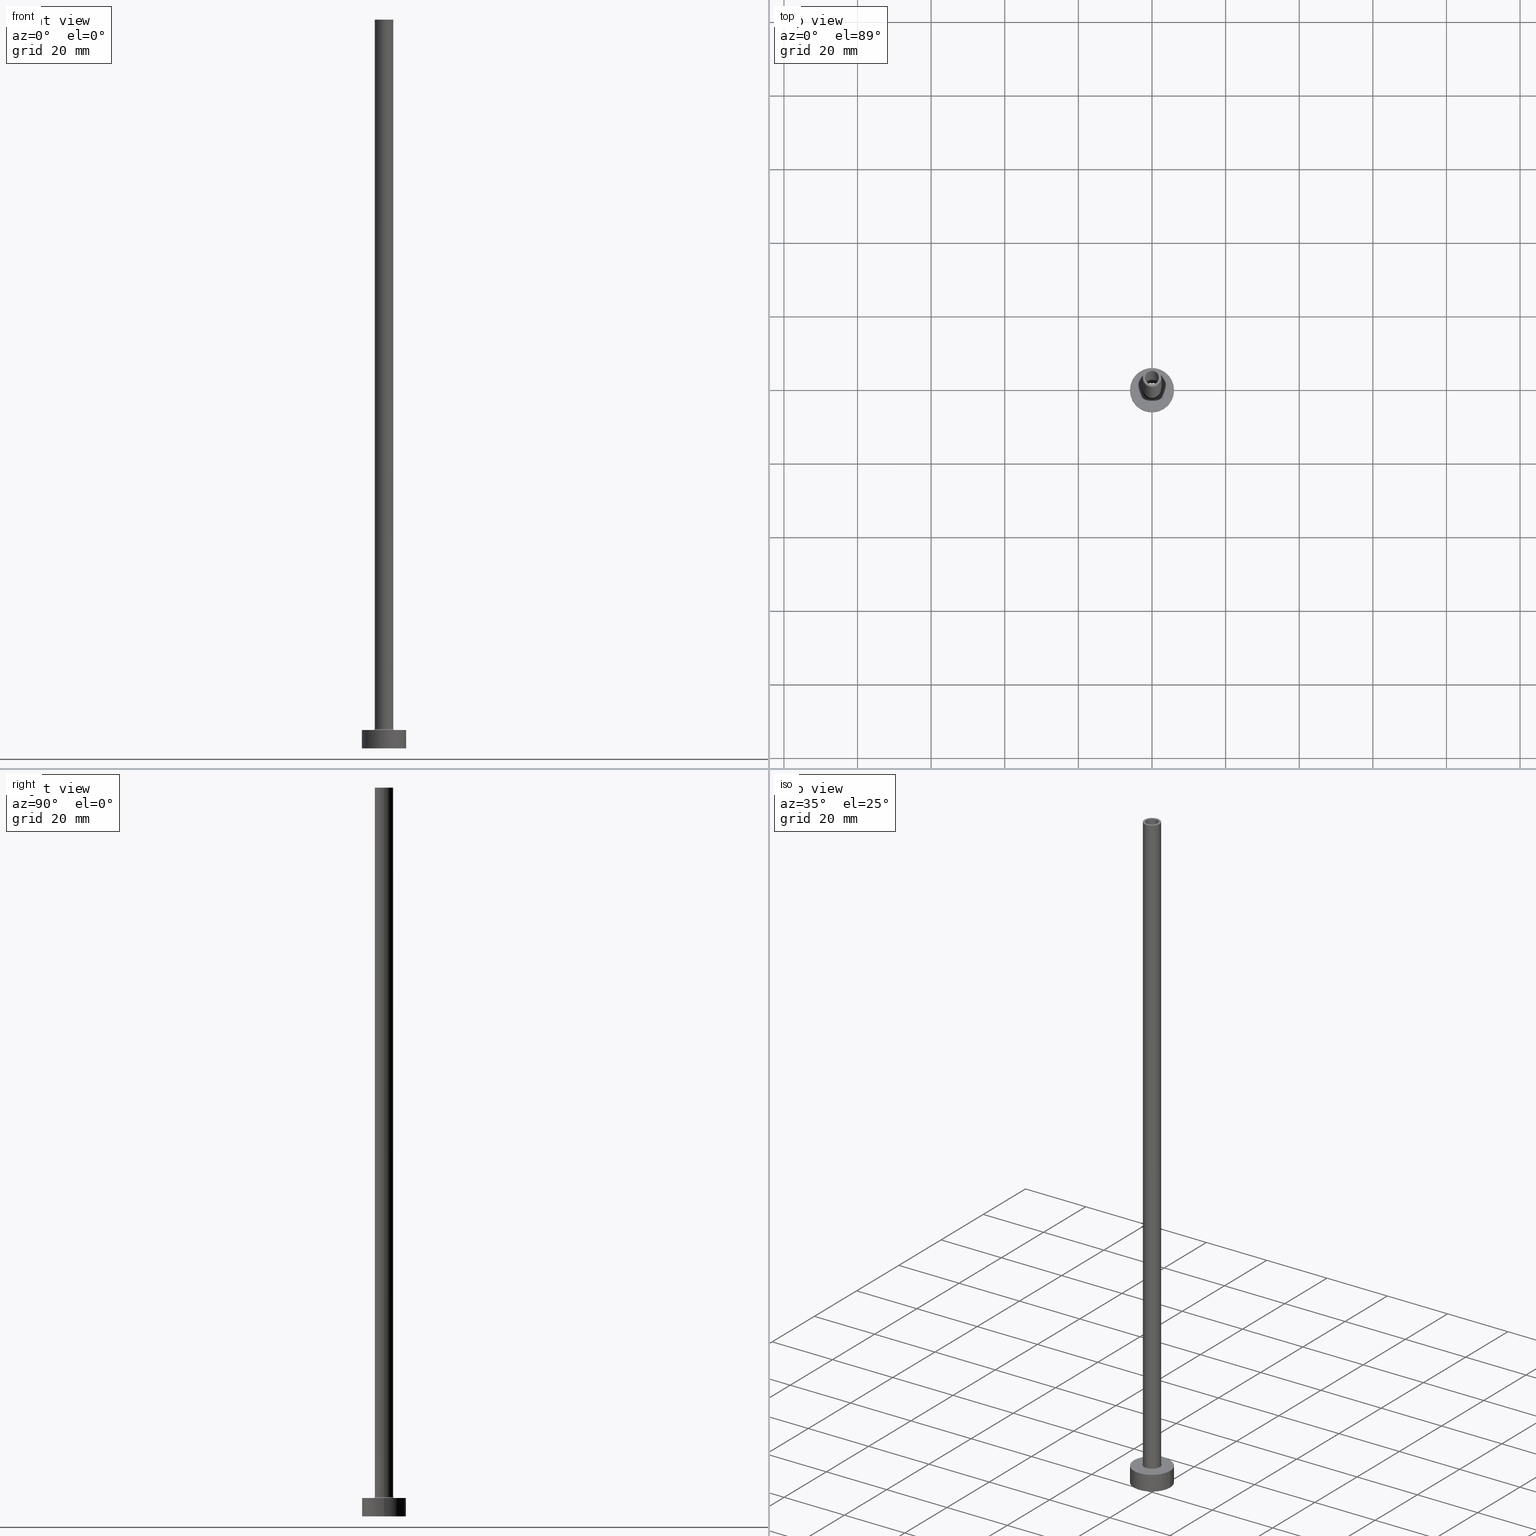
[diagram: canonical four-view strip — front | top / right | iso, engineering-drawing reading convention]
A machine part, canonical four-view strip (front | top / right | iso — engineering-drawing reading convention). The complete STEP part file that produces these views, byte-faithful:
ISO-10303-21;
HEADER;
FILE_DESCRIPTION (( 'STEP AP203' ),
    '1' );
FILE_NAME ('603a.STEP',
    '2024-02-09T09:06:29',
    ( '' ),
    ( '' ),
    'SwSTEP 2.0',
    'SolidWorks 2019',
    '' );
FILE_SCHEMA (( 'CONFIG_CONTROL_DESIGN' ));
ENDSEC;

DATA;
#1 = DATE_AND_TIME ( #318, #27 ) ;
#2 = FACE_OUTER_BOUND ( 'NONE', #372, .T. ) ;
#3 = DIRECTION ( 'NONE',  ( 0.000000000000000000, 0.000000000000000000, 1.000000000000000000 ) ) ;
#4 = EDGE_CURVE ( 'NONE', #62, #264, #193, .T. ) ;
#5 = APPROVAL_DATE_TIME ( #1, #447 ) ;
#6 = CC_DESIGN_PERSON_AND_ORGANIZATION_ASSIGNMENT ( #210, #424, ( #16 ) ) ;
#7 = ORIENTED_EDGE ( 'NONE', *, *, #369, .T. ) ;
#8 = COORDINATED_UNIVERSAL_TIME_OFFSET ( 1, 0, .AHEAD. ) ;
#9 = ORIENTED_EDGE ( 'NONE', *, *, #254, .T. ) ;
#10 = EDGE_CURVE ( 'NONE', #114, #434, #98, .T. ) ;
#11 = DIRECTION ( 'NONE',  ( 0.000000000000000000, 0.000000000000000000, 1.000000000000000000 ) ) ;
#12 = AXIS2_PLACEMENT_3D ( 'NONE', #66, #100, #141 ) ;
#13 = CARTESIAN_POINT ( 'NONE',  ( 0.000000000000000000, 0.000000000000000000, 153.0000000000000284 ) ) ;
#14 = VERTEX_POINT ( 'NONE', #238 ) ;
#15 = CIRCLE ( 'NONE', #135, 2.000000000000000000 ) ;
#16 = PRODUCT_DEFINITION_FORMATION_WITH_SPECIFIED_SOURCE ( 'LIBOVOLN�', '', #245, .NOT_KNOWN. ) ;
#17 = DIRECTION ( 'NONE',  ( 1.000000000000000000, 0.000000000000000000, 0.000000000000000000 ) ) ;
#18 = ORIENTED_EDGE ( 'NONE', *, *, #369, .F. ) ;
#19 = FACE_OUTER_BOUND ( 'NONE', #257, .T. ) ;
#20 = ORIENTED_EDGE ( 'NONE', *, *, #381, .T. ) ;
#21 = APPROVAL_ROLE ( '' ) ;
#22 = TOROIDAL_SURFACE ( 'NONE', #12, 2.799999999999999822, 0.2999999999999999889 ) ;
#23 = CARTESIAN_POINT ( 'NONE',  ( 0.000000000000000000, 0.000000000000000000, 153.0000000000000284 ) ) ;
#24 = ORIENTED_EDGE ( 'NONE', *, *, #198, .F. ) ;
#25 = APPROVAL_DATE_TIME ( #276, #54 ) ;
#26 = AXIS2_PLACEMENT_3D ( 'NONE', #256, #432, #358 ) ;
#27 = LOCAL_TIME ( 10, 6, 29.00000000000000000, #292 ) ;
#28 = ORIENTED_EDGE ( 'NONE', *, *, #40, .F. ) ;
#29 = EDGE_CURVE ( 'NONE', #446, #220, #286, .T. ) ;
#30 = VECTOR ( 'NONE', #454, 1000.000000000000000 ) ;
#31 = FACE_OUTER_BOUND ( 'NONE', #178, .T. ) ;
#32 = CARTESIAN_POINT ( 'NONE',  ( -1.850000000000000089, 0.000000000000000000, 198.0000000000000000 ) ) ;
#33 = CARTESIAN_POINT ( 'NONE',  ( -2.500000000000000000, 0.000000000000000000, 198.0000000000000000 ) ) ;
#34 = DIRECTION ( 'NONE',  ( 0.000000000000000000, 0.000000000000000000, 1.000000000000000000 ) ) ;
#35 = ADVANCED_FACE ( 'NONE', ( #384, #310 ), #393, .F. ) ;
#36 = CARTESIAN_POINT ( 'NONE',  ( 0.000000000000000000, 0.000000000000000000, 153.0000000000000284 ) ) ;
#37 = FACE_BOUND ( 'NONE', #337, .T. ) ;
#38 = CIRCLE ( 'NONE', #351, 1.850000000000000089 ) ;
#39 = CC_DESIGN_SECURITY_CLASSIFICATION ( #282, ( #16 ) ) ;
#40 = EDGE_CURVE ( 'NONE', #195, #114, #108, .T. ) ;
#41 = DATE_AND_TIME ( #77, #275 ) ;
#42 = CARTESIAN_POINT ( 'NONE',  ( 0.000000000000000000, 0.000000000000000000, 5.000000000000000000 ) ) ;
#43 = ORIENTED_EDGE ( 'NONE', *, *, #328, .T. ) ;
#44 = PERSON_AND_ORGANIZATION ( #134, #175 ) ;
#45 = APPLICATION_PROTOCOL_DEFINITION ( 'international standard', 'config_control_design', 1994, #80 ) ;
#46 = CARTESIAN_POINT ( 'NONE',  ( 1.850000000000000089, 2.265596578422602607E-16, 198.0000000000000000 ) ) ;
#47 = AXIS2_PLACEMENT_3D ( 'NONE', #427, #285, #262 ) ;
#48 = ORIENTED_EDGE ( 'NONE', *, *, #450, .T. ) ;
#49 = CARTESIAN_POINT ( 'NONE',  ( 2.000000000000000000, 2.449293598294706414E-16, 153.0000000000000284 ) ) ;
#50 = ADVANCED_FACE ( 'NONE', ( #60 ), #22, .F. ) ;
#51 = DIRECTION ( 'NONE',  ( 0.000000000000000000, 0.000000000000000000, 1.000000000000000000 ) ) ;
#52 = ORIENTED_EDGE ( 'NONE', *, *, #216, .T. ) ;
#53 = FACE_OUTER_BOUND ( 'NONE', #248, .T. ) ;
#54 = APPROVAL ( #125, 'NEUR�EN�' ) ;
#55 = EDGE_LOOP ( 'NONE', ( #214, #7, #251, #130 ) ) ;
#56 = CARTESIAN_POINT ( 'NONE',  ( 0.000000000000000000, 0.000000000000000000, 198.0000000000000000 ) ) ;
#57 = ORIENTED_EDGE ( 'NONE', *, *, #365, .T. ) ;
#58 = VECTOR ( 'NONE', #133, 1000.000000000000000 ) ;
#59 = DIRECTION ( 'NONE',  ( -1.000000000000000000, 0.000000000000000000, 0.000000000000000000 ) ) ;
#60 = FACE_OUTER_BOUND ( 'NONE', #55, .T. ) ;
#61 = CARTESIAN_POINT ( 'NONE',  ( 0.000000000000000000, 0.000000000000000000, 5.000000000000000000 ) ) ;
#62 = VERTEX_POINT ( 'NONE', #234 ) ;
#63 = APPROVAL_PERSON_ORGANIZATION ( #44, #447, #74 ) ;
#64 = FACE_OUTER_BOUND ( 'NONE', #120, .T. ) ;
#65 = ADVANCED_FACE ( 'NONE', ( #104, #277 ), #278, .T. ) ;
#66 = CARTESIAN_POINT ( 'NONE',  ( 0.000000000000000000, 0.000000000000000000, 5.299999999999998934 ) ) ;
#67 =( LENGTH_UNIT ( ) NAMED_UNIT ( * ) SI_UNIT ( .MILLI., .METRE. ) );
#68 = CARTESIAN_POINT ( 'NONE',  ( 1.850000000000000089, 2.265596578422602607E-16, 153.0000000000000284 ) ) ;
#69 = PERSON_AND_ORGANIZATION ( #134, #175 ) ;
#70 = ADVANCED_FACE ( 'NONE', ( #235, #106 ), #102, .F. ) ;
#71 = DIRECTION ( 'NONE',  ( 0.000000000000000000, 0.000000000000000000, 1.000000000000000000 ) ) ;
#72 = VECTOR ( 'NONE', #336, 1000.000000000000000 ) ;
#73 = CC_DESIGN_PERSON_AND_ORGANIZATION_ASSIGNMENT ( #69, #250, ( #249 ) ) ;
#74 = APPROVAL_ROLE ( '' ) ;
#75 = CARTESIAN_POINT ( 'NONE',  ( 0.000000000000000000, 0.000000000000000000, 5.000000000000000000 ) ) ;
#76 = VERTEX_POINT ( 'NONE', #68 ) ;
#77 = CALENDAR_DATE ( 2024, 9, 2 ) ;
#78 = VERTEX_POINT ( 'NONE', #354 ) ;
#79 = CARTESIAN_POINT ( 'NONE',  ( 0.000000000000000000, 0.000000000000000000, 153.0000000000000284 ) ) ;
#80 = APPLICATION_CONTEXT ( 'configuration controlled 3d designs of mechanical parts and assemblies' ) ;
#81 = CIRCLE ( 'NONE', #121, 2.500000000000000000 ) ;
#82 = CARTESIAN_POINT ( 'NONE',  ( 0.000000000000000000, 0.000000000000000000, 5.299999999999998934 ) ) ;
#83 = UNCERTAINTY_MEASURE_WITH_UNIT (LENGTH_MEASURE( 1.000000000000000082E-05 ), #67, 'distance_accuracy_value', 'NONE');
#84 = CARTESIAN_POINT ( 'NONE',  ( 0.000000000000000000, 0.000000000000000000, 5.299999999999998934 ) ) ;
#85 = EDGE_LOOP ( 'NONE', ( #449, #162, #48, #261 ) ) ;
#86 = CIRCLE ( 'NONE', #348, 6.000000000000000888 ) ;
#87 = DATE_AND_TIME ( #205, #157 ) ;
#88 = APPROVAL ( #407, 'NEUR�EN�' ) ;
#89 = DIRECTION ( 'NONE',  ( -0.000000000000000000, -0.000000000000000000, -1.000000000000000000 ) ) ;
#90 = ORIENTED_EDGE ( 'NONE', *, *, #168, .T. ) ;
#91 = AXIS2_PLACEMENT_3D ( 'NONE', #117, #403, #440 ) ;
#92 = DIRECTION ( 'NONE',  ( 0.000000000000000000, 0.000000000000000000, -1.000000000000000000 ) ) ;
#93 = ORIENTED_EDGE ( 'NONE', *, *, #154, .T. ) ;
#94 = CARTESIAN_POINT ( 'NONE',  ( -2.500000000000000000, 0.000000000000000000, 5.299999999999998934 ) ) ;
#95 = EDGE_CURVE ( 'NONE', #76, #434, #243, .T. ) ;
#96 = ORIENTED_EDGE ( 'NONE', *, *, #307, .F. ) ;
#97 = CARTESIAN_POINT ( 'NONE',  ( 0.000000000000000000, 0.000000000000000000, 0.000000000000000000 ) ) ;
#98 = LINE ( 'NONE', #32, #30 ) ;
#99 = DIRECTION ( 'NONE',  ( 1.000000000000000000, 0.000000000000000000, 0.000000000000000000 ) ) ;
#100 = DIRECTION ( 'NONE',  ( 0.000000000000000000, 0.000000000000000000, 1.000000000000000000 ) ) ;
#101 = DIRECTION ( 'NONE',  ( 1.000000000000000000, 0.000000000000000000, 0.000000000000000000 ) ) ;
#102 = PLANE ( 'NONE',  #339 ) ;
#103 = ADVANCED_FACE ( 'NONE', ( #37, #320 ), #116, .T. ) ;
#104 = FACE_BOUND ( 'NONE', #327, .T. ) ;
#105 = VECTOR ( 'NONE', #309, 1000.000000000000000 ) ;
#106 = FACE_OUTER_BOUND ( 'NONE', #323, .T. ) ;
#107 = PERSON_AND_ORGANIZATION ( #134, #175 ) ;
#108 = CIRCLE ( 'NONE', #302, 1.850000000000000089 ) ;
#109 = ORIENTED_EDGE ( 'NONE', *, *, #10, .F. ) ;
#110 = PRODUCT_DEFINITION_SHAPE ( 'NONE', 'NONE',  #249 ) ;
#111 = DIRECTION ( 'NONE',  ( 1.000000000000000000, 0.000000000000000000, 0.000000000000000000 ) ) ;
#112 = CIRCLE ( 'NONE', #165, 2.000000000000000000 ) ;
#113 = PERSON_AND_ORGANIZATION ( #134, #175 ) ;
#114 = VERTEX_POINT ( 'NONE', #364 ) ;
#115 = EDGE_CURVE ( 'NONE', #220, #446, #86, .T. ) ;
#116 = PLANE ( 'NONE',  #255 ) ;
#117 = CARTESIAN_POINT ( 'NONE',  ( 0.000000000000000000, 0.000000000000000000, 158.6568542494923975 ) ) ;
#118 = MANIFOLD_SOLID_BREP ( 'Odebrat vysunut�m4', #236 ) ;
#119 = AXIS2_PLACEMENT_3D ( 'NONE', #152, #71, #111 ) ;
#120 = EDGE_LOOP ( 'NONE', ( #90, #20, #308, #426 ) ) ;
#121 = AXIS2_PLACEMENT_3D ( 'NONE', #84, #219, #185 ) ;
#122 = CARTESIAN_POINT ( 'NONE',  ( -6.000000000000000888, 0.000000000000000000, 0.000000000000000000 ) ) ;
#123 = ADVANCED_FACE ( 'NONE', ( #2 ), #435, .F. ) ;
#124 = ORIENTED_EDGE ( 'NONE', *, *, #355, .F. ) ;
#125 = APPROVAL_STATUS ( 'not_yet_approved' ) ;
#126 = FACE_OUTER_BOUND ( 'NONE', #166, .T. ) ;
#127 = ORIENTED_EDGE ( 'NONE', *, *, #40, .T. ) ;
#128 = LINE ( 'NONE', #265, #207 ) ;
#129 = ORIENTED_EDGE ( 'NONE', *, *, #29, .T. ) ;
#130 = ORIENTED_EDGE ( 'NONE', *, *, #4, .F. ) ;
#131 = CC_DESIGN_PERSON_AND_ORGANIZATION_ASSIGNMENT ( #107, #360, ( #16 ) ) ;
#132 = EDGE_LOOP ( 'NONE', ( #124, #9, #43, #439 ) ) ;
#133 = DIRECTION ( 'NONE',  ( 0.000000000000000000, 0.000000000000000000, -1.000000000000000000 ) ) ;
#134 = PERSON ( 'NEUR�EN�', 'NEUR�EN�', 'NEUR�EN�', ('NEUR�EN�'), ('NEUR�EN�'), ('NEUR�EN�') ) ;
#135 = AXIS2_PLACEMENT_3D ( 'NONE', #79, #208, #211 ) ;
#136 = CIRCLE ( 'NONE', #317, 2.500000000000000000 ) ;
#137 =( NAMED_UNIT ( * ) SI_UNIT ( $, .STERADIAN. ) SOLID_ANGLE_UNIT ( ) );
#138 = DIRECTION ( 'NONE',  ( 1.000000000000000000, 0.000000000000000000, 0.000000000000000000 ) ) ;
#139 = EDGE_CURVE ( 'NONE', #366, #78, #422, .T. ) ;
#140 = DIRECTION ( 'NONE',  ( -0.000000000000000000, -0.000000000000000000, -1.000000000000000000 ) ) ;
#141 = DIRECTION ( 'NONE',  ( 1.000000000000000000, 0.000000000000000000, 0.000000000000000000 ) ) ;
#142 = CARTESIAN_POINT ( 'NONE',  ( -1.850000000000000089, 0.000000000000000000, 153.0000000000000284 ) ) ;
#143 = DIRECTION ( 'NONE',  ( 1.000000000000000000, 0.000000000000000000, -0.000000000000000000 ) ) ;
#144 = ADVANCED_FACE ( 'NONE', ( #395 ), #177, .T. ) ;
#145 = APPROVAL_PERSON_ORGANIZATION ( #363, #54, #21 ) ;
#146 = ORIENTED_EDGE ( 'NONE', *, *, #332, .T. ) ;
#147 = CARTESIAN_POINT ( 'NONE',  ( -2.799999999999999822, 3.429011037612589276E-16, 4.999999999999999112 ) ) ;
#148 = ORIENTED_EDGE ( 'NONE', *, *, #139, .T. ) ;
#149 = APPROVAL_PERSON_ORGANIZATION ( #113, #88, #244 ) ;
#150 = ORIENTED_EDGE ( 'NONE', *, *, #198, .T. ) ;
#151 = PERSON_AND_ORGANIZATION_ROLE ( 'classification_officer' ) ;
#152 = CARTESIAN_POINT ( 'NONE',  ( 0.000000000000000000, 0.000000000000000000, 198.0000000000000000 ) ) ;
#153 = DIRECTION ( 'NONE',  ( 0.000000000000000000, 0.000000000000000000, -1.000000000000000000 ) ) ;
#154 = EDGE_CURVE ( 'NONE', #114, #195, #258, .T. ) ;
#155 = DIRECTION ( 'NONE',  ( -0.000000000000000000, -0.000000000000000000, -1.000000000000000000 ) ) ;
#156 = VERTEX_POINT ( 'NONE', #397 ) ;
#157 = LOCAL_TIME ( 10, 6, 29.00000000000000000, #176 ) ;
#158 = CC_DESIGN_APPROVAL ( #54, ( #282 ) ) ;
#159 = CARTESIAN_POINT ( 'NONE',  ( -2.000000000000000000, 0.000000000000000000, 153.0000000000000284 ) ) ;
#160 = CALENDAR_DATE ( 2024, 9, 2 ) ;
#161 = DIRECTION ( 'NONE',  ( 0.000000000000000000, 0.000000000000000000, 1.000000000000000000 ) ) ;
#162 = ORIENTED_EDGE ( 'NONE', *, *, #29, .F. ) ;
#163 = DIRECTION ( 'NONE',  ( 0.000000000000000000, 0.000000000000000000, 1.000000000000000000 ) ) ;
#164 = ORIENTED_EDGE ( 'NONE', *, *, #115, .F. ) ;
#165 = AXIS2_PLACEMENT_3D ( 'NONE', #97, #140, #390 ) ;
#166 = EDGE_LOOP ( 'NONE', ( #191, #146, #57, #148 ) ) ;
#167 = CARTESIAN_POINT ( 'NONE',  ( -6.000000000000000888, 0.000000000000000000, 5.000000000000000000 ) ) ;
#168 = EDGE_CURVE ( 'NONE', #345, #227, #15, .T. ) ;
#169 = VECTOR ( 'NONE', #421, 1000.000000000000000 ) ;
#170 = CARTESIAN_POINT ( 'NONE',  ( 0.000000000000000000, 0.000000000000000000, 0.000000000000000000 ) ) ;
#171 = DIRECTION ( 'NONE',  ( 1.000000000000000000, 0.000000000000000000, 0.000000000000000000 ) ) ;
#172 = APPLICATION_CONTEXT ( 'configuration controlled 3d designs of mechanical parts and assemblies' ) ;
#173 = DIRECTION ( 'NONE',  ( 0.000000000000000000, 0.000000000000000000, 1.000000000000000000 ) ) ;
#174 = CALENDAR_DATE ( 2024, 9, 2 ) ;
#175 = ORGANIZATION ( 'NEUR�EN�', 'NEUR�EN�', '' ) ;
#176 = COORDINATED_UNIVERSAL_TIME_OFFSET ( 1, 0, .AHEAD. ) ;
#177 = CYLINDRICAL_SURFACE ( 'NONE', #316, 6.000000000000000888 ) ;
#178 = EDGE_LOOP ( 'NONE', ( #93, #52, #203, #109 ) ) ;
#179 = ORIENTED_EDGE ( 'NONE', *, *, #168, .F. ) ;
#180 = PERSON_AND_ORGANIZATION ( #134, #175 ) ;
#181 = DIRECTION ( 'NONE',  ( 1.000000000000000000, 0.000000000000000000, 0.000000000000000000 ) ) ;
#182 = AXIS2_PLACEMENT_3D ( 'NONE', #304, #343, #233 ) ;
#183 = CARTESIAN_POINT ( 'NONE',  ( 0.000000000000000000, 0.000000000000000000, 5.000000000000000000 ) ) ;
#184 = ADVANCED_BREP_SHAPE_REPRESENTATION ( '603a', ( #118, #47 ), #373 ) ;
#185 = DIRECTION ( 'NONE',  ( 1.000000000000000000, 0.000000000000000000, 0.000000000000000000 ) ) ;
#186 = ORIENTED_EDGE ( 'NONE', *, *, #139, .F. ) ;
#187 = AXIS2_PLACEMENT_3D ( 'NONE', #230, #458, #456 ) ;
#188 = CIRCLE ( 'NONE', #324, 2.799999999999999822 ) ;
#189 = CIRCLE ( 'NONE', #222, 2.799999999999999822 ) ;
#190 = DIRECTION ( 'NONE',  ( 0.000000000000000000, 0.000000000000000000, -1.000000000000000000 ) ) ;
#191 = ORIENTED_EDGE ( 'NONE', *, *, #381, .F. ) ;
#192 = ORIENTED_EDGE ( 'NONE', *, *, #450, .F. ) ;
#193 = CIRCLE ( 'NONE', #451, 0.2999999999999999334 ) ;
#194 = DIRECTION ( 'NONE',  ( -1.000000000000000000, 0.000000000000000000, 0.000000000000000000 ) ) ;
#195 = VERTEX_POINT ( 'NONE', #46 ) ;
#196 = CIRCLE ( 'NONE', #259, 6.000000000000000888 ) ;
#197 = DIRECTION ( 'NONE',  ( 1.000000000000000000, 0.000000000000000000, 0.000000000000000000 ) ) ;
#198 = EDGE_CURVE ( 'NONE', #212, #264, #188, .T. ) ;
#199 = DIRECTION ( 'NONE',  ( -0.000000000000000000, -0.000000000000000000, -1.000000000000000000 ) ) ;
#200 = CARTESIAN_POINT ( 'NONE',  ( 0.000000000000000000, 0.000000000000000000, 198.0000000000000000 ) ) ;
#201 = VECTOR ( 'NONE', #190, 1000.000000000000000 ) ;
#202 = CYLINDRICAL_SURFACE ( 'NONE', #232, 2.000000000000000000 ) ;
#203 = ORIENTED_EDGE ( 'NONE', *, *, #341, .F. ) ;
#204 =( NAMED_UNIT ( * ) PLANE_ANGLE_UNIT ( ) SI_UNIT ( $, .RADIAN. ) );
#205 = CALENDAR_DATE ( 2024, 9, 2 ) ;
#206 = DIRECTION ( 'NONE',  ( -0.000000000000000000, -0.000000000000000000, -1.000000000000000000 ) ) ;
#207 = VECTOR ( 'NONE', #92, 1000.000000000000000 ) ;
#208 = DIRECTION ( 'NONE',  ( 0.000000000000000000, 0.000000000000000000, 1.000000000000000000 ) ) ;
#209 = ORIENTED_EDGE ( 'NONE', *, *, #431, .F. ) ;
#210 = PERSON_AND_ORGANIZATION ( #134, #175 ) ;
#211 = DIRECTION ( 'NONE',  ( 1.000000000000000000, 0.000000000000000000, 0.000000000000000000 ) ) ;
#212 = VERTEX_POINT ( 'NONE', #147 ) ;
#213 = DATE_TIME_ROLE ( 'classification_date' ) ;
#214 = ORIENTED_EDGE ( 'NONE', *, *, #313, .F. ) ;
#215 = AXIS2_PLACEMENT_3D ( 'NONE', #375, #161, #301 ) ;
#216 = EDGE_CURVE ( 'NONE', #195, #76, #284, .T. ) ;
#217 = CYLINDRICAL_SURFACE ( 'NONE', #333, 1.850000000000000089 ) ;
#218 = ORIENTED_EDGE ( 'NONE', *, *, #154, .F. ) ;
#219 = DIRECTION ( 'NONE',  ( 0.000000000000000000, 0.000000000000000000, 1.000000000000000000 ) ) ;
#220 = VERTEX_POINT ( 'NONE', #228 ) ;
#221 = CARTESIAN_POINT ( 'NONE',  ( 6.000000000000000888, 7.347880794884120722E-16, 0.000000000000000000 ) ) ;
#222 = AXIS2_PLACEMENT_3D ( 'NONE', #382, #387, #99 ) ;
#223 = ORIENTED_EDGE ( 'NONE', *, *, #341, .T. ) ;
#224 = SHAPE_DEFINITION_REPRESENTATION ( #110, #184 ) ;
#225 = ADVANCED_FACE ( 'NONE', ( #53 ), #217, .F. ) ;
#226 = CARTESIAN_POINT ( 'NONE',  ( 2.500000000000000000, 3.061616997868383141E-16, 198.0000000000000000 ) ) ;
#227 = VERTEX_POINT ( 'NONE', #49 ) ;
#228 = CARTESIAN_POINT ( 'NONE',  ( 6.000000000000000888, 7.347880794884120722E-16, 5.000000000000000000 ) ) ;
#229 = ORIENTED_EDGE ( 'NONE', *, *, #10, .T. ) ;
#230 = CARTESIAN_POINT ( 'NONE',  ( 0.000000000000000000, 0.000000000000000000, 153.0000000000000284 ) ) ;
#231 = ADVANCED_FACE ( 'NONE', ( #126 ), #442, .F. ) ;
#232 = AXIS2_PLACEMENT_3D ( 'NONE', #415, #352, #59 ) ;
#233 = DIRECTION ( 'NONE',  ( -1.000000000000000000, 1.224646799147353207E-16, 0.000000000000000000 ) ) ;
#234 = CARTESIAN_POINT ( 'NONE',  ( 2.500000000000000000, 3.061616997868383141E-16, 5.299999999999998934 ) ) ;
#235 = FACE_BOUND ( 'NONE', #288, .T. ) ;
#236 = CLOSED_SHELL ( 'NONE', ( #386, #420, #50, #350, #144, #404, #65, #70, #293, #103, #123, #231, #35, #225 ) ) ;
#237 = DIRECTION ( 'NONE',  ( 0.000000000000000000, 0.000000000000000000, -1.000000000000000000 ) ) ;
#238 = CARTESIAN_POINT ( 'NONE',  ( -2.500000000000000000, 0.000000000000000000, 198.0000000000000000 ) ) ;
#239 = VECTOR ( 'NONE', #89, 1000.000000000000000 ) ;
#240 = DIRECTION ( 'NONE',  ( 0.000000000000000000, 0.000000000000000000, 1.000000000000000000 ) ) ;
#241 = APPROVAL_DATE_TIME ( #87, #88 ) ;
#242 = CC_DESIGN_PERSON_AND_ORGANIZATION_ASSIGNMENT ( #180, #151, ( #282 ) ) ;
#243 = CIRCLE ( 'NONE', #370, 1.850000000000000089 ) ;
#244 = APPROVAL_ROLE ( '' ) ;
#245 = PRODUCT ( '603a', '603a', '', ( #459 ) ) ;
#246 = DIRECTION ( 'NONE',  ( 1.000000000000000000, 0.000000000000000000, 0.000000000000000000 ) ) ;
#247 = DESIGN_CONTEXT ( 'detailed design', #80, 'design' ) ;
#248 = EDGE_LOOP ( 'NONE', ( #406, #127, #229, #269 ) ) ;
#249 = PRODUCT_DEFINITION ( 'NEZN�M�', '', #16, #247 ) ;
#250 = PERSON_AND_ORGANIZATION_ROLE ( 'creator' ) ;
#251 = ORIENTED_EDGE ( 'NONE', *, *, #394, .F. ) ;
#252 = DIRECTION ( 'NONE',  ( 1.000000000000000000, 0.000000000000000000, -0.000000000000000000 ) ) ;
#253 = ORIENTED_EDGE ( 'NONE', *, *, #95, .T. ) ;
#254 = EDGE_CURVE ( 'NONE', #156, #62, #296, .T. ) ;
#255 = AXIS2_PLACEMENT_3D ( 'NONE', #428, #322, #252 ) ;
#256 = CARTESIAN_POINT ( 'NONE',  ( 0.000000000000000000, 0.000000000000000000, 0.000000000000000000 ) ) ;
#257 = EDGE_LOOP ( 'NONE', ( #272, #209, #303, #400 ) ) ;
#258 = CIRCLE ( 'NONE', #119, 1.850000000000000089 ) ;
#259 = AXIS2_PLACEMENT_3D ( 'NONE', #371, #338, #330 ) ;
#260 = LINE ( 'NONE', #436, #239 ) ;
#261 = ORIENTED_EDGE ( 'NONE', *, *, #307, .T. ) ;
#262 = DIRECTION ( 'NONE',  ( 1.000000000000000000, 0.000000000000000000, 0.000000000000000000 ) ) ;
#263 = CYLINDRICAL_SURFACE ( 'NONE', #383, 2.500000000000000000 ) ;
#264 = VERTEX_POINT ( 'NONE', #405 ) ;
#265 = CARTESIAN_POINT ( 'NONE',  ( -2.000000000000000000, 0.000000000000000000, 158.6568542494923975 ) ) ;
#266 = CIRCLE ( 'NONE', #374, 2.500000000000000000 ) ;
#267 = EDGE_LOOP ( 'NONE', ( #129, #300 ) ) ;
#268 = DIRECTION ( 'NONE',  ( -0.000000000000000000, -0.000000000000000000, -1.000000000000000000 ) ) ;
#269 = ORIENTED_EDGE ( 'NONE', *, *, #95, .F. ) ;
#270 = FACE_OUTER_BOUND ( 'NONE', #85, .T. ) ;
#271 = CC_DESIGN_PERSON_AND_ORGANIZATION_ASSIGNMENT ( #283, #433, ( #245 ) ) ;
#272 = ORIENTED_EDGE ( 'NONE', *, *, #254, .F. ) ;
#273 = CARTESIAN_POINT ( 'NONE',  ( 0.000000000000000000, 0.000000000000000000, 198.0000000000000000 ) ) ;
#274 = CARTESIAN_POINT ( 'NONE',  ( 0.000000000000000000, 0.000000000000000000, 198.0000000000000000 ) ) ;
#275 = LOCAL_TIME ( 10, 6, 29.00000000000000000, #321 ) ;
#276 = DATE_AND_TIME ( #160, #402 ) ;
#277 = FACE_OUTER_BOUND ( 'NONE', #267, .T. ) ;
#278 = PLANE ( 'NONE',  #279 ) ;
#279 = AXIS2_PLACEMENT_3D ( 'NONE', #419, #173, #143 ) ;
#280 = LINE ( 'NONE', #347, #169 ) ;
#281 = CARTESIAN_POINT ( 'NONE',  ( 0.000000000000000000, 0.000000000000000000, 0.000000000000000000 ) ) ;
#282 = SECURITY_CLASSIFICATION ( '', '', #357 ) ;
#283 = PERSON_AND_ORGANIZATION ( #134, #175 ) ;
#284 = LINE ( 'NONE', #319, #201 ) ;
#285 = DIRECTION ( 'NONE',  ( 0.000000000000000000, 0.000000000000000000, 1.000000000000000000 ) ) ;
#286 = CIRCLE ( 'NONE', #380, 6.000000000000000888 ) ;
#287 = APPLICATION_PROTOCOL_DEFINITION ( 'international standard', 'config_control_design', 1994, #172 ) ;
#288 = EDGE_LOOP ( 'NONE', ( #186, #376 ) ) ;
#289 = CIRCLE ( 'NONE', #367, 6.000000000000000888 ) ;
#290 = DIRECTION ( 'NONE',  ( 1.000000000000000000, 0.000000000000000000, 0.000000000000000000 ) ) ;
#291 = ORIENTED_EDGE ( 'NONE', *, *, #332, .F. ) ;
#292 = COORDINATED_UNIVERSAL_TIME_OFFSET ( 1, 0, .AHEAD. ) ;
#293 = ADVANCED_FACE ( 'NONE', ( #19 ), #263, .T. ) ;
#294 = AXIS2_PLACEMENT_3D ( 'NONE', #361, #11, #290 ) ;
#295 = FACE_OUTER_BOUND ( 'NONE', #132, .T. ) ;
#296 = LINE ( 'NONE', #226, #72 ) ;
#297 = VERTEX_POINT ( 'NONE', #122 ) ;
#298 = CYLINDRICAL_SURFACE ( 'NONE', #344, 2.500000000000000000 ) ;
#299 = EDGE_CURVE ( 'NONE', #220, #331, #260, .T. ) ;
#300 = ORIENTED_EDGE ( 'NONE', *, *, #115, .T. ) ;
#301 = DIRECTION ( 'NONE',  ( 1.000000000000000000, 0.000000000000000000, 0.000000000000000000 ) ) ;
#302 = AXIS2_PLACEMENT_3D ( 'NONE', #274, #34, #138 ) ;
#303 = ORIENTED_EDGE ( 'NONE', *, *, #398, .T. ) ;
#304 = CARTESIAN_POINT ( 'NONE',  ( -2.799999999999999822, 3.429011037612588783E-16, 5.299999999999998934 ) ) ;
#305 = CC_DESIGN_APPROVAL ( #88, ( #249 ) ) ;
#306 = ORIENTED_EDGE ( 'NONE', *, *, #299, .T. ) ;
#307 = EDGE_CURVE ( 'NONE', #297, #331, #196, .T. ) ;
#308 = ORIENTED_EDGE ( 'NONE', *, *, #412, .T. ) ;
#309 = DIRECTION ( 'NONE',  ( -0.000000000000000000, -0.000000000000000000, -1.000000000000000000 ) ) ;
#310 = FACE_OUTER_BOUND ( 'NONE', #441, .T. ) ;
#311 = AXIS2_PLACEMENT_3D ( 'NONE', #61, #199, #346 ) ;
#312 = LINE ( 'NONE', #455, #58 ) ;
#313 = EDGE_CURVE ( 'NONE', #340, #62, #81, .T. ) ;
#314 = DIRECTION ( 'NONE',  ( -1.000000000000000000, 0.000000000000000000, 0.000000000000000000 ) ) ;
#315 = APPROVAL_STATUS ( 'not_yet_approved' ) ;
#316 = AXIS2_PLACEMENT_3D ( 'NONE', #75, #425, #329 ) ;
#317 = AXIS2_PLACEMENT_3D ( 'NONE', #82, #413, #334 ) ;
#318 = CALENDAR_DATE ( 2024, 9, 2 ) ;
#319 = CARTESIAN_POINT ( 'NONE',  ( 1.850000000000000089, 2.265596578422602607E-16, 198.0000000000000000 ) ) ;
#320 = FACE_OUTER_BOUND ( 'NONE', #443, .T. ) ;
#321 = COORDINATED_UNIVERSAL_TIME_OFFSET ( 1, 0, .AHEAD. ) ;
#322 = DIRECTION ( 'NONE',  ( 0.000000000000000000, 0.000000000000000000, 1.000000000000000000 ) ) ;
#323 = EDGE_LOOP ( 'NONE', ( #96, #429 ) ) ;
#324 = AXIS2_PLACEMENT_3D ( 'NONE', #42, #206, #356 ) ;
#325 = DATE_TIME_ROLE ( 'creation_date' ) ;
#326 = DIRECTION ( 'NONE',  ( 0.000000000000000000, 0.000000000000000000, 1.000000000000000000 ) ) ;
#327 = EDGE_LOOP ( 'NONE', ( #411, #150 ) ) ;
#328 = EDGE_CURVE ( 'NONE', #62, #340, #136, .T. ) ;
#329 = DIRECTION ( 'NONE',  ( -1.000000000000000000, 0.000000000000000000, 0.000000000000000000 ) ) ;
#330 = DIRECTION ( 'NONE',  ( 1.000000000000000000, 0.000000000000000000, 0.000000000000000000 ) ) ;
#331 = VERTEX_POINT ( 'NONE', #221 ) ;
#332 = EDGE_CURVE ( 'NONE', #227, #345, #396, .T. ) ;
#333 = AXIS2_PLACEMENT_3D ( 'NONE', #410, #153, #379 ) ;
#334 = DIRECTION ( 'NONE',  ( 1.000000000000000000, 0.000000000000000000, 0.000000000000000000 ) ) ;
#335 = EDGE_LOOP ( 'NONE', ( #223, #253 ) ) ;
#336 = DIRECTION ( 'NONE',  ( -0.000000000000000000, -0.000000000000000000, -1.000000000000000000 ) ) ;
#337 = EDGE_LOOP ( 'NONE', ( #218, #28 ) ) ;
#338 = DIRECTION ( 'NONE',  ( 0.000000000000000000, 0.000000000000000000, 1.000000000000000000 ) ) ;
#339 = AXIS2_PLACEMENT_3D ( 'NONE', #281, #388, #423 ) ;
#340 = VERTEX_POINT ( 'NONE', #94 ) ;
#341 = EDGE_CURVE ( 'NONE', #434, #76, #38, .T. ) ;
#342 = COORDINATED_UNIVERSAL_TIME_OFFSET ( 1, 0, .AHEAD. ) ;
#343 = DIRECTION ( 'NONE',  ( 1.224646799147353207E-16, 1.000000000000000000, -0.000000000000000000 ) ) ;
#344 = AXIS2_PLACEMENT_3D ( 'NONE', #408, #268, #194 ) ;
#345 = VERTEX_POINT ( 'NONE', #159 ) ;
#346 = DIRECTION ( 'NONE',  ( -1.000000000000000000, 0.000000000000000000, 0.000000000000000000 ) ) ;
#347 = CARTESIAN_POINT ( 'NONE',  ( -6.000000000000000888, 0.000000000000000000, 5.000000000000000000 ) ) ;
#348 = AXIS2_PLACEMENT_3D ( 'NONE', #183, #3, #246 ) ;
#349 = DIRECTION ( 'NONE',  ( 0.000000000000000000, 0.000000000000000000, 1.000000000000000000 ) ) ;
#350 = ADVANCED_FACE ( 'NONE', ( #295 ), #298, .T. ) ;
#351 = AXIS2_PLACEMENT_3D ( 'NONE', #23, #163, #368 ) ;
#352 = DIRECTION ( 'NONE',  ( 0.000000000000000000, 0.000000000000000000, -1.000000000000000000 ) ) ;
#353 = DIRECTION ( 'NONE',  ( 0.000000000000000000, 0.000000000000000000, -1.000000000000000000 ) ) ;
#354 = CARTESIAN_POINT ( 'NONE',  ( 2.000000000000000000, 2.449293598294706414E-16, 0.000000000000000000 ) ) ;
#355 = EDGE_CURVE ( 'NONE', #156, #14, #438, .T. ) ;
#356 = DIRECTION ( 'NONE',  ( 1.000000000000000000, 0.000000000000000000, 0.000000000000000000 ) ) ;
#357 = SECURITY_CLASSIFICATION_LEVEL ( 'unclassified' ) ;
#358 = DIRECTION ( 'NONE',  ( 1.000000000000000000, 0.000000000000000000, 0.000000000000000000 ) ) ;
#359 = ORIENTED_EDGE ( 'NONE', *, *, #4, .T. ) ;
#360 = PERSON_AND_ORGANIZATION_ROLE ( 'design_supplier' ) ;
#361 = CARTESIAN_POINT ( 'NONE',  ( 0.000000000000000000, 0.000000000000000000, 5.299999999999998934 ) ) ;
#362 = EDGE_LOOP ( 'NONE', ( #164, #306, #378, #192 ) ) ;
#363 = PERSON_AND_ORGANIZATION ( #134, #175 ) ;
#364 = CARTESIAN_POINT ( 'NONE',  ( -1.850000000000000089, 0.000000000000000000, 198.0000000000000000 ) ) ;
#365 = EDGE_CURVE ( 'NONE', #345, #366, #128, .T. ) ;
#366 = VERTEX_POINT ( 'NONE', #377 ) ;
#367 = AXIS2_PLACEMENT_3D ( 'NONE', #170, #349, #197 ) ;
#368 = DIRECTION ( 'NONE',  ( 1.000000000000000000, 0.000000000000000000, 0.000000000000000000 ) ) ;
#369 = EDGE_CURVE ( 'NONE', #340, #212, #461, .T. ) ;
#370 = AXIS2_PLACEMENT_3D ( 'NONE', #36, #326, #181 ) ;
#371 = CARTESIAN_POINT ( 'NONE',  ( 0.000000000000000000, 0.000000000000000000, 0.000000000000000000 ) ) ;
#372 = EDGE_LOOP ( 'NONE', ( #18, #437, #359, #24 ) ) ;
#373 =( GEOMETRIC_REPRESENTATION_CONTEXT ( 3 ) GLOBAL_UNCERTAINTY_ASSIGNED_CONTEXT ( ( #83 ) ) GLOBAL_UNIT_ASSIGNED_CONTEXT ( ( #67, #204, #137 ) ) REPRESENTATION_CONTEXT ( 'NONE', 'WORKASPACE' ) );
#374 = AXIS2_PLACEMENT_3D ( 'NONE', #200, #457, #101 ) ;
#375 = CARTESIAN_POINT ( 'NONE',  ( 0.000000000000000000, 0.000000000000000000, 198.0000000000000000 ) ) ;
#376 = ORIENTED_EDGE ( 'NONE', *, *, #412, .F. ) ;
#377 = CARTESIAN_POINT ( 'NONE',  ( -2.000000000000000000, 0.000000000000000000, 0.000000000000000000 ) ) ;
#378 = ORIENTED_EDGE ( 'NONE', *, *, #444, .T. ) ;
#379 = DIRECTION ( 'NONE',  ( -1.000000000000000000, 0.000000000000000000, 0.000000000000000000 ) ) ;
#380 = AXIS2_PLACEMENT_3D ( 'NONE', #418, #240, #171 ) ;
#381 = EDGE_CURVE ( 'NONE', #227, #78, #312, .T. ) ;
#382 = CARTESIAN_POINT ( 'NONE',  ( 0.000000000000000000, 0.000000000000000000, 5.000000000000000000 ) ) ;
#383 = AXIS2_PLACEMENT_3D ( 'NONE', #56, #155, #445 ) ;
#384 = FACE_BOUND ( 'NONE', #335, .T. ) ;
#385 = CYLINDRICAL_SURFACE ( 'NONE', #452, 1.850000000000000089 ) ;
#386 = ADVANCED_FACE ( 'NONE', ( #31 ), #385, .F. ) ;
#387 = DIRECTION ( 'NONE',  ( -0.000000000000000000, -0.000000000000000000, -1.000000000000000000 ) ) ;
#388 = DIRECTION ( 'NONE',  ( 0.000000000000000000, 0.000000000000000000, 1.000000000000000000 ) ) ;
#389 = CC_DESIGN_DATE_AND_TIME_ASSIGNMENT ( #399, #325, ( #249 ) ) ;
#390 = DIRECTION ( 'NONE',  ( 1.000000000000000000, 0.000000000000000000, 0.000000000000000000 ) ) ;
#391 = DIRECTION ( 'NONE',  ( 0.000000000000000000, -1.000000000000000000, 0.000000000000000000 ) ) ;
#392 = CYLINDRICAL_SURFACE ( 'NONE', #311, 6.000000000000000888 ) ;
#393 = PLANE ( 'NONE',  #187 ) ;
#394 = EDGE_CURVE ( 'NONE', #264, #212, #189, .T. ) ;
#395 = FACE_OUTER_BOUND ( 'NONE', #362, .T. ) ;
#396 = CIRCLE ( 'NONE', #430, 2.000000000000000000 ) ;
#397 = CARTESIAN_POINT ( 'NONE',  ( 2.500000000000000000, 3.061616997868383141E-16, 198.0000000000000000 ) ) ;
#398 = EDGE_CURVE ( 'NONE', #14, #340, #448, .T. ) ;
#399 = DATE_AND_TIME ( #174, #417 ) ;
#400 = ORIENTED_EDGE ( 'NONE', *, *, #313, .T. ) ;
#401 = ORIENTED_EDGE ( 'NONE', *, *, #355, .T. ) ;
#402 = LOCAL_TIME ( 10, 6, 29.00000000000000000, #342 ) ;
#403 = DIRECTION ( 'NONE',  ( 0.000000000000000000, 0.000000000000000000, -1.000000000000000000 ) ) ;
#404 = ADVANCED_FACE ( 'NONE', ( #270 ), #392, .T. ) ;
#405 = CARTESIAN_POINT ( 'NONE',  ( 2.799999999999999822, 0.000000000000000000, 4.999999999999999112 ) ) ;
#406 = ORIENTED_EDGE ( 'NONE', *, *, #216, .F. ) ;
#407 = APPROVAL_STATUS ( 'not_yet_approved' ) ;
#408 = CARTESIAN_POINT ( 'NONE',  ( 0.000000000000000000, 0.000000000000000000, 198.0000000000000000 ) ) ;
#409 = CC_DESIGN_APPROVAL ( #447, ( #16 ) ) ;
#410 = CARTESIAN_POINT ( 'NONE',  ( 0.000000000000000000, 0.000000000000000000, 198.0000000000000000 ) ) ;
#411 = ORIENTED_EDGE ( 'NONE', *, *, #394, .T. ) ;
#412 = EDGE_CURVE ( 'NONE', #78, #366, #112, .T. ) ;
#413 = DIRECTION ( 'NONE',  ( 0.000000000000000000, 0.000000000000000000, 1.000000000000000000 ) ) ;
#414 = ORIENTED_EDGE ( 'NONE', *, *, #431, .T. ) ;
#415 = CARTESIAN_POINT ( 'NONE',  ( 0.000000000000000000, 0.000000000000000000, 158.6568542494923975 ) ) ;
#416 = PRODUCT_RELATED_PRODUCT_CATEGORY ( 'detail', '', ( #245 ) ) ;
#417 = LOCAL_TIME ( 10, 6, 29.00000000000000000, #8 ) ;
#418 = CARTESIAN_POINT ( 'NONE',  ( 0.000000000000000000, 0.000000000000000000, 5.000000000000000000 ) ) ;
#419 = CARTESIAN_POINT ( 'NONE',  ( 0.000000000000000000, 0.000000000000000000, 5.000000000000000000 ) ) ;
#420 = ADVANCED_FACE ( 'NONE', ( #64 ), #202, .F. ) ;
#421 = DIRECTION ( 'NONE',  ( -0.000000000000000000, -0.000000000000000000, -1.000000000000000000 ) ) ;
#422 = CIRCLE ( 'NONE', #26, 2.000000000000000000 ) ;
#423 = DIRECTION ( 'NONE',  ( 1.000000000000000000, 0.000000000000000000, -0.000000000000000000 ) ) ;
#424 = PERSON_AND_ORGANIZATION_ROLE ( 'creator' ) ;
#425 = DIRECTION ( 'NONE',  ( -0.000000000000000000, -0.000000000000000000, -1.000000000000000000 ) ) ;
#426 = ORIENTED_EDGE ( 'NONE', *, *, #365, .F. ) ;
#427 = CARTESIAN_POINT ( 'NONE',  ( 0.000000000000000000, 0.000000000000000000, 0.000000000000000000 ) ) ;
#428 = CARTESIAN_POINT ( 'NONE',  ( 0.000000000000000000, 0.000000000000000000, 198.0000000000000000 ) ) ;
#429 = ORIENTED_EDGE ( 'NONE', *, *, #444, .F. ) ;
#430 = AXIS2_PLACEMENT_3D ( 'NONE', #13, #51, #17 ) ;
#431 = EDGE_CURVE ( 'NONE', #14, #156, #266, .T. ) ;
#432 = DIRECTION ( 'NONE',  ( -0.000000000000000000, -0.000000000000000000, -1.000000000000000000 ) ) ;
#433 = PERSON_AND_ORGANIZATION_ROLE ( 'design_owner' ) ;
#434 = VERTEX_POINT ( 'NONE', #142 ) ;
#435 = TOROIDAL_SURFACE ( 'NONE', #294, 2.799999999999999822, 0.2999999999999999889 ) ;
#436 = CARTESIAN_POINT ( 'NONE',  ( 6.000000000000000888, 7.347880794884120722E-16, 5.000000000000000000 ) ) ;
#437 = ORIENTED_EDGE ( 'NONE', *, *, #328, .F. ) ;
#438 = CIRCLE ( 'NONE', #215, 2.500000000000000000 ) ;
#439 = ORIENTED_EDGE ( 'NONE', *, *, #398, .F. ) ;
#440 = DIRECTION ( 'NONE',  ( -1.000000000000000000, 0.000000000000000000, 0.000000000000000000 ) ) ;
#441 = EDGE_LOOP ( 'NONE', ( #179, #291 ) ) ;
#442 = CYLINDRICAL_SURFACE ( 'NONE', #91, 2.000000000000000000 ) ;
#443 = EDGE_LOOP ( 'NONE', ( #414, #401 ) ) ;
#444 = EDGE_CURVE ( 'NONE', #331, #297, #289, .T. ) ;
#445 = DIRECTION ( 'NONE',  ( -1.000000000000000000, 0.000000000000000000, 0.000000000000000000 ) ) ;
#446 = VERTEX_POINT ( 'NONE', #167 ) ;
#447 = APPROVAL ( #315, 'NEUR�EN�' ) ;
#448 = LINE ( 'NONE', #33, #105 ) ;
#449 = ORIENTED_EDGE ( 'NONE', *, *, #299, .F. ) ;
#450 = EDGE_CURVE ( 'NONE', #446, #297, #280, .T. ) ;
#451 = AXIS2_PLACEMENT_3D ( 'NONE', #460, #391, #353 ) ;
#452 = AXIS2_PLACEMENT_3D ( 'NONE', #273, #237, #314 ) ;
#453 = CC_DESIGN_DATE_AND_TIME_ASSIGNMENT ( #41, #213, ( #282 ) ) ;
#454 = DIRECTION ( 'NONE',  ( 0.000000000000000000, 0.000000000000000000, -1.000000000000000000 ) ) ;
#455 = CARTESIAN_POINT ( 'NONE',  ( 2.000000000000000000, 2.449293598294706414E-16, 158.6568542494923975 ) ) ;
#456 = DIRECTION ( 'NONE',  ( 1.000000000000000000, 0.000000000000000000, -0.000000000000000000 ) ) ;
#457 = DIRECTION ( 'NONE',  ( 0.000000000000000000, 0.000000000000000000, 1.000000000000000000 ) ) ;
#458 = DIRECTION ( 'NONE',  ( 0.000000000000000000, 0.000000000000000000, 1.000000000000000000 ) ) ;
#459 = MECHANICAL_CONTEXT ( 'NONE', #172, 'mechanical' ) ;
#460 = CARTESIAN_POINT ( 'NONE',  ( 2.799999999999999822, 0.000000000000000000, 5.299999999999998934 ) ) ;
#461 = CIRCLE ( 'NONE', #182, 0.2999999999999999334 ) ;
ENDSEC;
END-ISO-10303-21;
